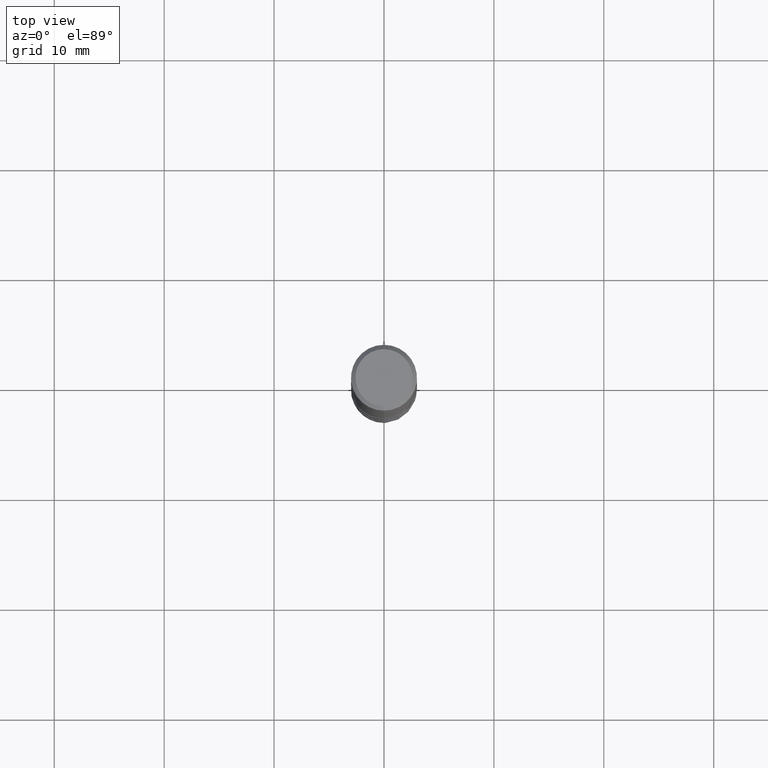
[diagram: clean part render]
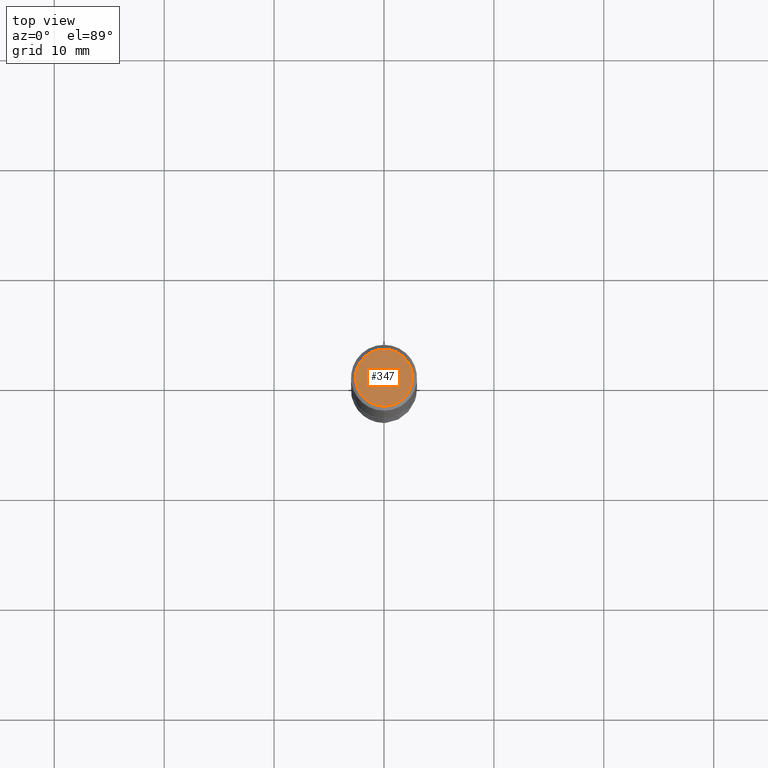
[diagram: same view with one face highlighted and labeled with its STEP entity id]
A machine part, top view. The second image highlights one B-rep face of the part: STEP entity #347.
In plain terms, the highlighted planar face has unit normal (-0, 0, 1).
Its self-contained STEP definition (entity closure, byte-faithful):
#283=VERTEX_POINT('',#754);
#347=ADVANCED_FACE('',(#824),#825,.T.);
#437=VERTEX_POINT('',#922);
#583=EDGE_CURVE('',#283,#437,#1080,.T.);
#589=EDGE_CURVE('',#437,#283,#1087,.T.);
#754=CARTESIAN_POINT('',(3.18397651993818E-016,-2.6,0.0));
#824=FACE_OUTER_BOUND('',#2594,.T.);
#825=PLANE('',#2595);
#922=CARTESIAN_POINT('',(0.0,2.6,0.0));
#1080=CIRCLE('',#3649,2.6);
#1087=CIRCLE('',#3658,2.6);
#2594=EDGE_LOOP('',(#5007,#5008));
#2595=AXIS2_PLACEMENT_3D('',#5009,#5010,#5011);
#3649=AXIS2_PLACEMENT_3D('',#5238,#5239,#5240);
#3658=AXIS2_PLACEMENT_3D('',#5269,#5270,#5271);
#5007=ORIENTED_EDGE('',*,*,#589,.F.);
#5008=ORIENTED_EDGE('',*,*,#583,.F.);
#5009=CARTESIAN_POINT('',(0.0,1.3,0.0));
#5010=DIRECTION('',(-0.0,0.0,1.0));
#5011=DIRECTION('',(0.0,-1.0,0.0));
#5238=CARTESIAN_POINT('',(0.0,0.0,0.0));
#5239=DIRECTION('',(0.0,0.0,-1.0));
#5240=DIRECTION('',(0.0,1.0,0.0));
#5269=CARTESIAN_POINT('',(0.0,0.0,0.0));
#5270=DIRECTION('',(0.0,0.0,-1.0));
#5271=DIRECTION('',(0.0,1.0,0.0));